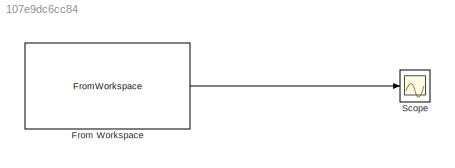
MODEL slx_107e9dc6cc84
KIND model
BLOCK [FromWorkspace] From Workspace
  SampleTime = 0
  VariableName = [time_clipped,y1_clipped]
  ZeroCross = on
BLOCK [Scope] Scope
  DataFormat = StructureWithTime
  Floating = off
  NumInputPorts = 1
  Ports = [1]
  SampleTime = 0
  ShowLegends = off
  YMax = 4e+07
  YMin = 3.3e+07
LINE From Workspace:1 -> Scope:1
